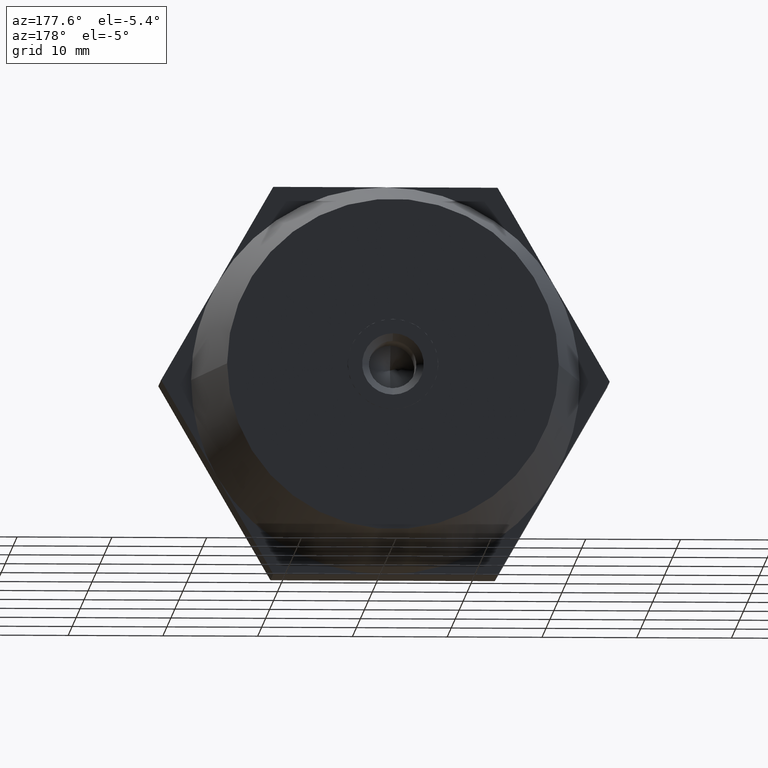
[diagram: clean part render]
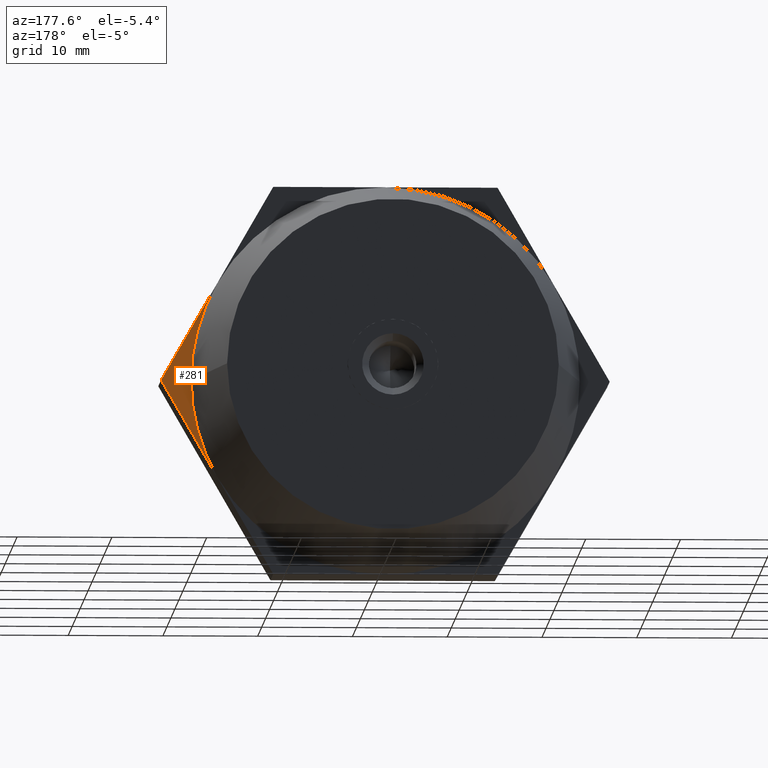
[diagram: same view with one face highlighted and labeled with its STEP entity id]
A machine part, auxiliary view. The second image highlights one B-rep face of the part: STEP entity #281.
In plain terms, the highlighted planar face has unit normal (0, 1, 0).
Its self-contained STEP definition (entity closure, byte-faithful):
#263 = ORIENTED_EDGE ( 'NONE', *, *, #561, .T. ) ;
#281 = ADVANCED_FACE ( 'NONE', ( #3251 ), #3167, .T. ) ;
#335 = VERTEX_POINT ( 'NONE', #1628 ) ;
#456 = EDGE_CURVE ( 'NONE', #335, #941, #796, .T. ) ;
#481 = DIRECTION ( 'NONE',  ( -1.224646799147353900E-016, 1.000000000000000000, 0.0000000000000000000 ) ) ;
#561 = EDGE_CURVE ( 'NONE', #1171, #941, #1209, .T. ) ;
#646 = DIRECTION ( 'NONE',  ( -1.000000000000000000, -1.269309860470834500E-016, 0.0000000000000000000 ) ) ;
#658 = DIRECTION ( 'NONE',  ( -0.4999999999999998900, 0.0000000000000000000, -0.8660254037844387100 ) ) ;
#712 = VECTOR ( 'NONE', #658, 1000.000000000000000 ) ;
#727 = DIRECTION ( 'NONE',  ( 0.0000000000000000000, 1.000000000000000000, 0.0000000000000000000 ) ) ;
#737 = ORIENTED_EDGE ( 'NONE', *, *, #812, .T. ) ;
#796 = CIRCLE ( 'NONE', #2803, 20.50000000000000000 ) ;
#812 = EDGE_CURVE ( 'NONE', #2422, #1171, #3176, .T. ) ;
#941 = VERTEX_POINT ( 'NONE', #2099 ) ;
#946 = CIRCLE ( 'NONE', #3758, 20.50000000000000000 ) ;
#1171 = VERTEX_POINT ( 'NONE', #3490 ) ;
#1209 = LINE ( 'NONE', #1533, #712 ) ;
#1371 = DIRECTION ( 'NONE',  ( -1.000000000000000000, -1.269309860470834500E-016, 0.0000000000000000000 ) ) ;
#1533 = CARTESIAN_POINT ( 'NONE',  ( 23.67136103677464800, 3.500000000000000000, -6.903896913073319100E-015 ) ) ;
#1564 = CARTESIAN_POINT ( 'NONE',  ( 11.83568051838732100, 3.500000000000000000, 20.50000000000000000 ) ) ;
#1628 = CARTESIAN_POINT ( 'NONE',  ( 20.49999999999999300, 3.500000000000003600, 0.0000000000000000000 ) ) ;
#1657 = DIRECTION ( 'NONE',  ( 0.4999999999999998900, 0.0000000000000000000, -0.8660254037844387100 ) ) ;
#1666 = CARTESIAN_POINT ( 'NONE',  ( 2.326828918379969800E-015, 3.500000000000000000, 0.0000000000000000000 ) ) ;
#1816 = ORIENTED_EDGE ( 'NONE', *, *, #2749, .F. ) ;
#1915 = CARTESIAN_POINT ( 'NONE',  ( 0.0000000000000000000, 3.500000000000000000, 0.0000000000000000000 ) ) ;
#1927 = DIRECTION ( 'NONE',  ( 0.0000000000000000000, 0.0000000000000000000, 1.000000000000000000 ) ) ;
#2099 = CARTESIAN_POINT ( 'NONE',  ( 17.75352077758099900, 3.500000000000000000, -10.25000000000000000 ) ) ;
#2422 = VERTEX_POINT ( 'NONE', #3760 ) ;
#2629 = AXIS2_PLACEMENT_3D ( 'NONE', #1915, #727, #1927 ) ;
#2749 = EDGE_CURVE ( 'NONE', #2422, #335, #946, .T. ) ;
#2803 = AXIS2_PLACEMENT_3D ( 'NONE', #1666, #481, #1371 ) ;
#3024 = DIRECTION ( 'NONE',  ( -1.224646799147353900E-016, 1.000000000000000000, 0.0000000000000000000 ) ) ;
#3071 = VECTOR ( 'NONE', #1657, 1000.000000000000000 ) ;
#3167 = PLANE ( 'NONE',  #2629 ) ;
#3176 = LINE ( 'NONE', #1564, #3071 ) ;
#3251 = FACE_OUTER_BOUND ( 'NONE', #3411, .T. ) ;
#3411 = EDGE_LOOP ( 'NONE', ( #1816, #737, #263, #3670 ) ) ;
#3490 = CARTESIAN_POINT ( 'NONE',  ( 23.67136103677464800, 3.500000000000000000, -6.903896913073319100E-015 ) ) ;
#3611 = CARTESIAN_POINT ( 'NONE',  ( 2.326828918379969800E-015, 3.500000000000000000, 0.0000000000000000000 ) ) ;
#3670 = ORIENTED_EDGE ( 'NONE', *, *, #456, .F. ) ;
#3758 = AXIS2_PLACEMENT_3D ( 'NONE', #3611, #3024, #646 ) ;
#3760 = CARTESIAN_POINT ( 'NONE',  ( 17.75352077758099900, 3.500000000000000000, 10.25000000000000000 ) ) ;